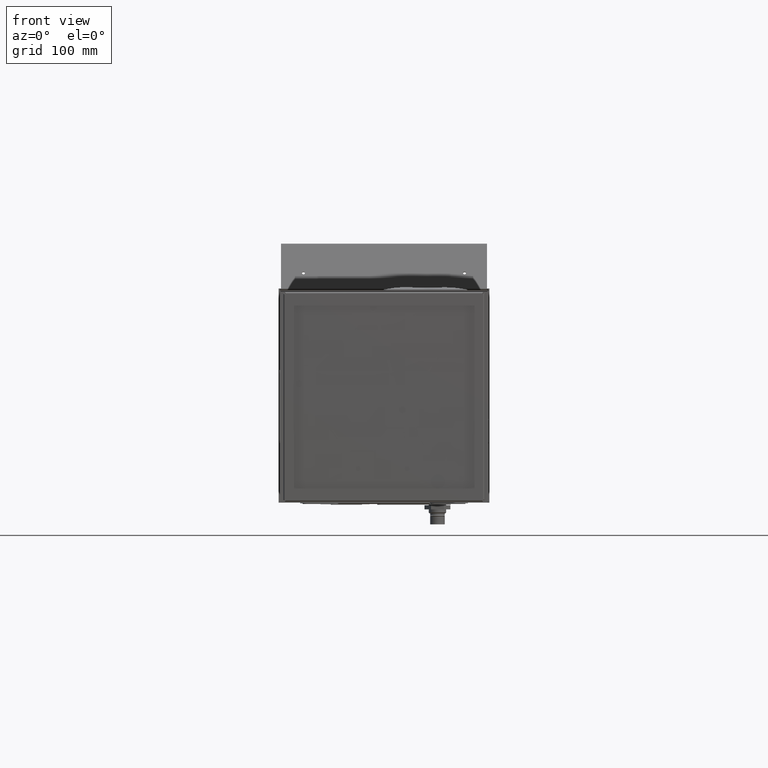
[diagram: clean part render]
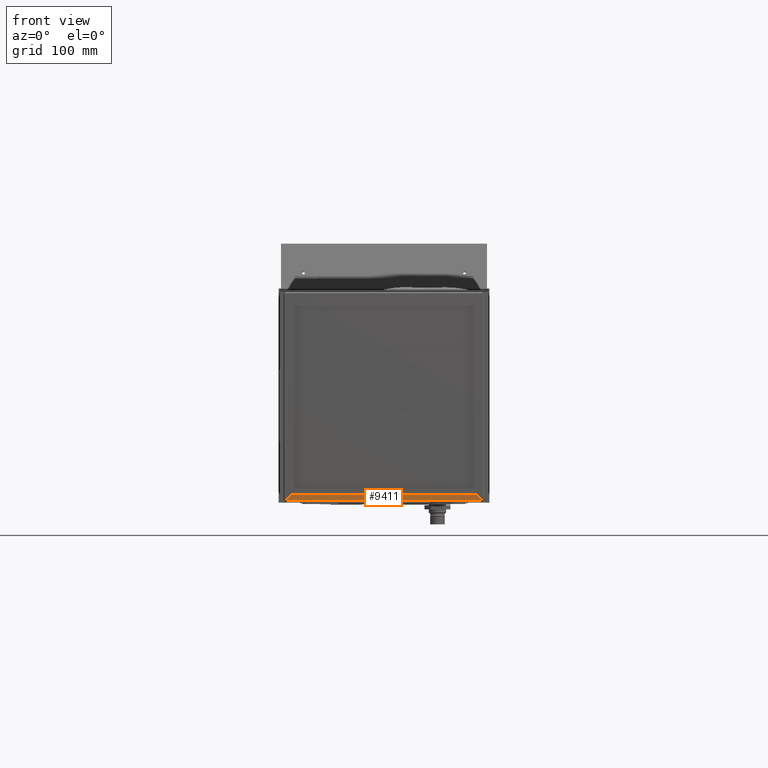
[diagram: same view with one face highlighted and labeled with its STEP entity id]
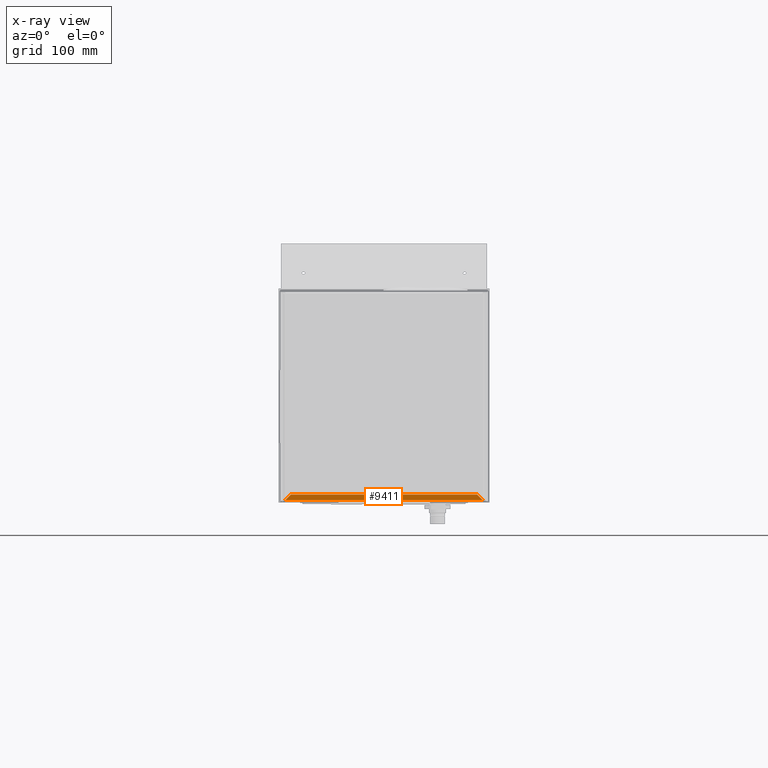
[diagram: x-ray of the same camera — body ghosted, the highlighted face saturated]
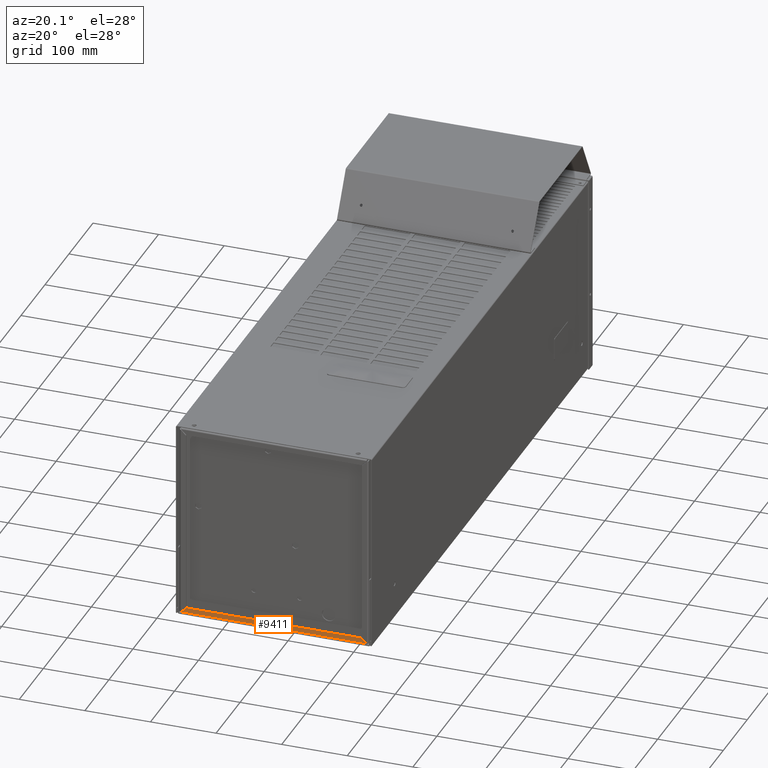
[diagram: same view with one face highlighted and labeled with its STEP entity id]
A machine part, front view. The second image highlights one B-rep face of the part: STEP entity #9411.
The next image is the same camera in x-ray: the body ghosted, the highlighted face saturated — about 0% of this face is hidden behind the body in this view.
A second angle (auxiliary view) of the same face is appended — the face is thin or edge-on in the first view.
In plain terms, the highlighted planar face has unit normal (-0, 1, -0).
Its self-contained STEP definition (entity closure, byte-faithful):
#1222 = EDGE_CURVE ( 'NONE', #5715, #37582, #44745, .T. ) ;
#2143 = EDGE_LOOP ( 'NONE', ( #36349, #34766, #15813, #62029 ) ) ;
#2200 = VECTOR ( 'NONE', #56536, 39.37007874015748854 ) ;
#4553 = CARTESIAN_POINT ( 'NONE',  ( -5.554452488929661591, -18.07067391848870130, -5.842332245058992513 ) ) ;
#5715 = VERTEX_POINT ( 'NONE', #53051 ) ;
#9411 = ADVANCED_FACE ( 'NONE', ( #15141 ), #54005, .F. ) ;
#10335 = DIRECTION ( 'NONE',  ( -3.000000000000001811E-15, 0.9999999999404064477, -1.091729335052836335E-05 ) ) ;
#14358 = CARTESIAN_POINT ( 'NONE',  ( -5.247751701528087231, -18.07067057014622335, -5.535631457675692424 ) ) ;
#15007 = EDGE_CURVE ( 'NONE', #37582, #24961, #61635, .T. ) ;
#15141 = FACE_OUTER_BOUND ( 'NONE', #2143, .T. ) ;
#15813 = ORIENTED_EDGE ( 'NONE', *, *, #15007, .F. ) ;
#18642 = LINE ( 'NONE', #38089, #39900 ) ;
#20899 = EDGE_CURVE ( 'NONE', #58093, #5715, #18642, .T. ) ;
#20921 = CARTESIAN_POINT ( 'NONE',  ( -5.554452488929661591, -18.07067391848870130, -5.842332245058992513 ) ) ;
#23280 = VECTOR ( 'NONE', #36925, 39.37007874015748143 ) ;
#24675 = DIRECTION ( 'NONE',  ( -1.000000000000000000, -3.000032762117995541E-15, -3.000921396262955270E-15 ) ) ;
#24961 = VERTEX_POINT ( 'NONE', #14358 ) ;
#25854 = CARTESIAN_POINT ( 'NONE',  ( 5.247751701528087231, -18.07067057014618428, -5.535631457675661338 ) ) ;
#27061 = LINE ( 'NONE', #61133, #23280 ) ;
#28503 = VECTOR ( 'NONE', #24675, 39.37007874015748143 ) ;
#29804 = CARTESIAN_POINT ( 'NONE',  ( -1.854241825699618411E-14, -18.07061039608838726, -0.02382043438210244141 ) ) ;
#34766 = ORIENTED_EDGE ( 'NONE', *, *, #51520, .F. ) ;
#36349 = ORIENTED_EDGE ( 'NONE', *, *, #20899, .F. ) ;
#36925 = DIRECTION ( 'NONE',  ( 1.000000000000000000, 3.000030626256235595E-15, 2.805281168444995299E-15 ) ) ;
#37582 = VERTEX_POINT ( 'NONE', #20921 ) ;
#38089 = CARTESIAN_POINT ( 'NONE',  ( -2.303822486537346670, -18.07058812739555265, 2.015942729939645517 ) ) ;
#39900 = VECTOR ( 'NONE', #48579, 39.37007874015748143 ) ;
#41952 = AXIS2_PLACEMENT_3D ( 'NONE', #29804, #10335, #42023 ) ;
#42023 = DIRECTION ( 'NONE',  ( -1.000000000000000000, 0.000000000000000000, 2.747933854735900307E-10 ) ) ;
#44745 = LINE ( 'NONE', #58769, #28503 ) ;
#48579 = DIRECTION ( 'NONE',  ( 0.7071067811865520136, -7.719692158096469960E-06, -0.7071067811444040618 ) ) ;
#51520 = EDGE_CURVE ( 'NONE', #24961, #58093, #27061, .T. ) ;
#53051 = CARTESIAN_POINT ( 'NONE',  ( 5.554452488929661591, -18.07067391848866222, -5.842332245058953433 ) ) ;
#54005 = PLANE ( 'NONE',  #41952 ) ;
#56536 = DIRECTION ( 'NONE',  ( 0.7071067811865479058, 7.719692162339158043E-06, 0.7071067811444079476 ) ) ;
#58093 = VERTEX_POINT ( 'NONE', #25854 ) ;
#58769 = CARTESIAN_POINT ( 'NONE',  ( -5.585452488929661286, -18.07067391848870130, -5.842332245058992513 ) ) ;
#61133 = CARTESIAN_POINT ( 'NONE',  ( -5.585452488929661286, -18.07067057014622335, -5.535631457675692424 ) ) ;
#61635 = LINE ( 'NONE', #4553, #2200 ) ;
#62029 = ORIENTED_EDGE ( 'NONE', *, *, #1222, .F. ) ;